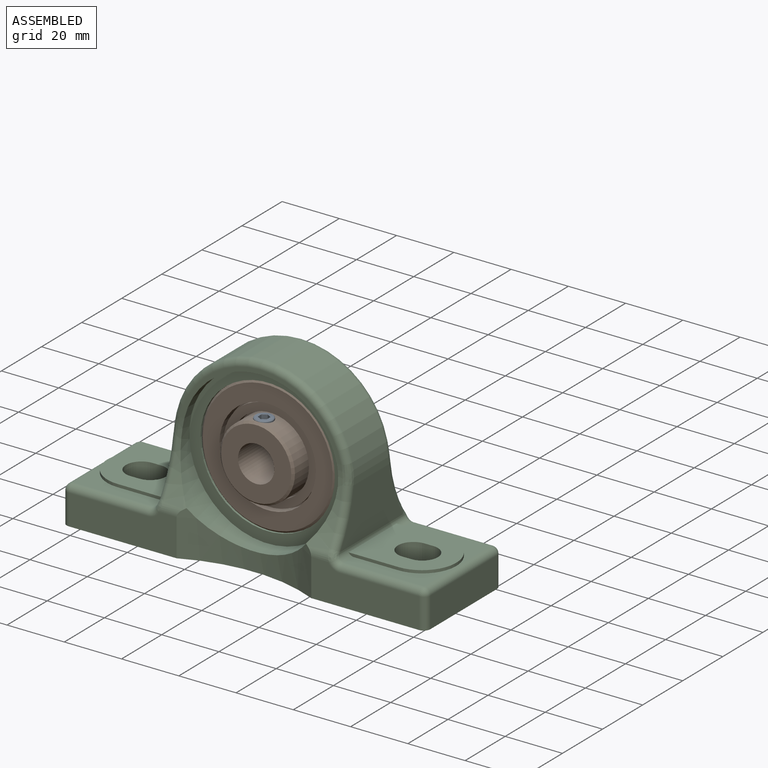
[diagram: assembled view]
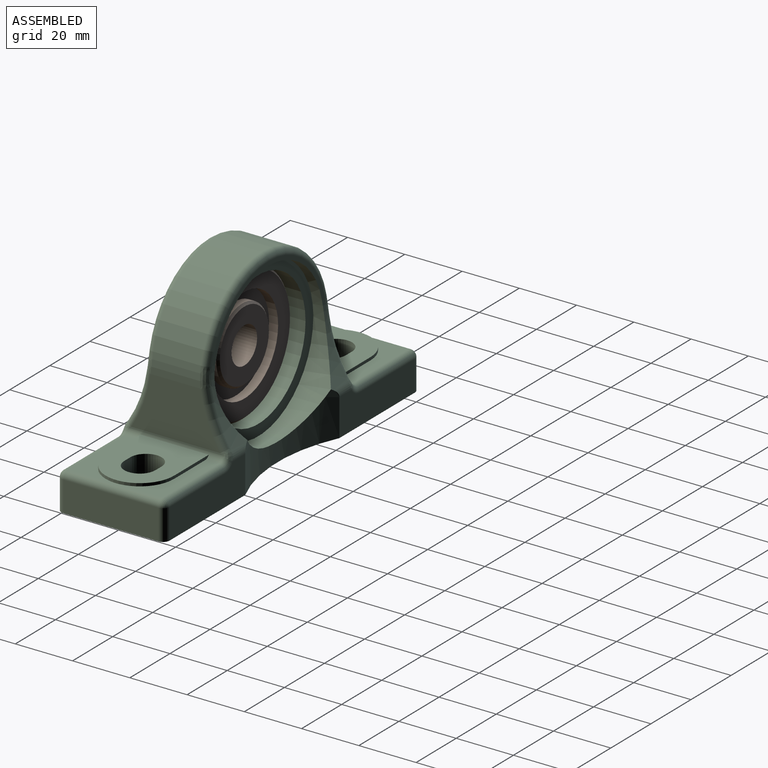
[diagram: assembled view, second angle]
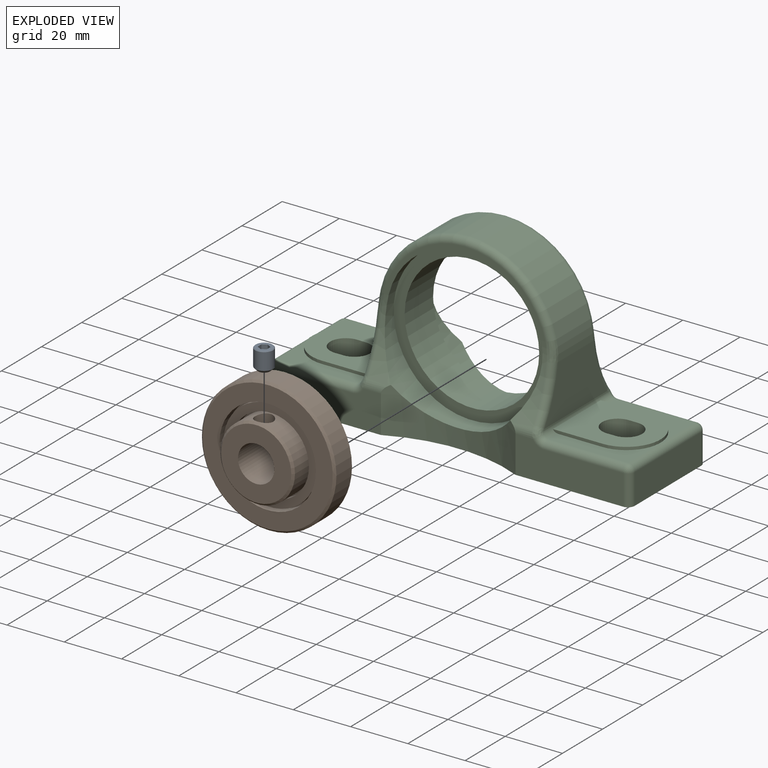
[diagram: exploded view]
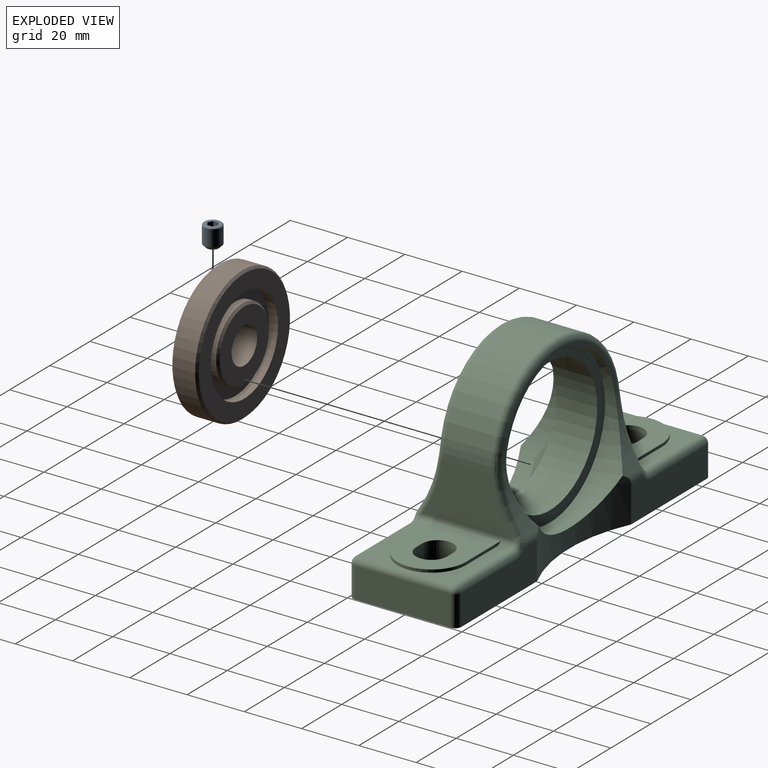
[diagram: exploded view, second angle]
ASSEMBLY  parts=3 mates=3
PART A: 12 faces, bbox 6.2x6.2x7.2 mm
  f0: cylinder r=3.12mm len=6.25mm, axis (0,0,1), area 115.9mm2, adj f10,f11
  f1: plane 4.22x4.22mm, normal (0,0,-1), area 14mm2, adj f10
  f2: plane 5.74x5.74mm, normal (0,0,1), area 17.2mm2, adj f3,f4,f5,f6,f7,f8,f11
  f3: plane 2.12x1.59mm, normal (0.5,-0.87,0), area 3.9mm2, adj f2,f4,f8,f9
  f4: plane 2.12x1.59mm, normal (-0.5,-0.87,0), area 3.9mm2, adj f2,f3,f5,f9
  f5: plane 2.12x1.83mm, normal (-1,0,0), area 3.9mm2, adj f2,f4,f6,f9
  f6: plane 2.12x1.59mm, normal (-0.5,0.87,0), area 3.9mm2, adj f2,f5,f7,f9
  f7: plane 2.12x1.59mm, normal (0.5,0.87,0), area 3.9mm2, adj f2,f6,f8,f9
  f8: plane 2.12x1.83mm, normal (1,0,0), area 3.9mm2, adj f2,f3,f7,f9
  f9: plane 3.67x3.18mm, normal (0,0,1), area 8.7mm2, adj f3,f4,f5,f6,f7,f8
  f10: cone r=3.12mm half-angle=45deg, axis (0,0,1), area 23.6mm2, adj f0,f1
  f11: cone r=3.12mm half-angle=45deg, axis (0,0,-1), area 6.8mm2, adj f0,f2
PART B: 21 faces, bbox 47x15x47 mm
  f0: cylinder r=23.49mm len=46.99mm, axis (0,-1,0), area 1143.9mm2, adj f18,f19
  f1: plane 45.47x45.47mm, normal (0,-1,0), area 734mm2, adj f2,f19
  f2: cylinder r=16.83mm len=33.66mm, axis (0,-1,0), area 335.7mm2, adj f1,f3
  f3: plane 33.66x33.66mm, normal (0,-1,0), area 52.9mm2, adj f2,f4
  f4: cylinder r=16.32mm len=32.64mm, axis (0,-1,0), area 195.3mm2, adj f3,f5
  f5: plane 32.64x32.64mm, normal (0,-1,0), area 262mm2, adj f4,f6
  f6: cylinder r=13.53mm len=27.05mm, axis (0,-1,0), area 161.9mm2, adj f5,f7
  f7: plane 27.05x27.05mm, normal (0,-1,0), area 42.4mm2, adj f6,f8
  f8: cylinder r=13.02mm len=26.04mm, axis (0,-1,0), area 634.8mm2, adj f7,f17,f20
  f9: plane 24.51x24.51mm, normal (0,-1,0), area 345.2mm2, adj f10,f17
  f10: cylinder r=6.35mm len=15.01mm, axis (0,-1,0), area 566.2mm2, adj f9,f11,f20
  f11: plane 24.51x24.51mm, normal (0,1,0), area 345.2mm2, adj f10,f16
  f12: cylinder r=13.02mm len=26.04mm, axis (0,-1,0), area 197.4mm2, adj f13,f16
  f13: plane 33.66x33.66mm, normal (0,1,0), area 357.2mm2, adj f12,f14
  f14: cylinder r=16.83mm len=33.66mm, axis (0,-1,0), area 335.7mm2, adj f13,f15
  f15: plane 45.47x45.47mm, normal (0,1,0), area 734mm2, adj f14,f18
  f16: cone r=13.02mm half-angle=45deg, axis (0,-1,0), area 85.6mm2, adj f11,f12
  f17: cone r=12.26mm half-angle=45deg, axis (0,1,0), area 85.6mm2, adj f8,f9
  f18: cone r=23.49mm half-angle=45deg, axis (0,-1,0), area 156.5mm2, adj f0,f15
  f19: cone r=22.73mm half-angle=45deg, axis (0,1,0), area 156.5mm2, adj f0,f1
  f20: cylinder r=3.17mm len=7.52mm, axis (0,0,1), area 137.4mm2, adj f8,f10
PART C: 83 faces, bbox 127x38.1x67.6 mm
  f0: cylinder r=23.49mm len=46.99mm, axis (0,1,0), area 2092.8mm2, adj f39,f46
  f1: plane 37.68x12.95mm, normal (0,1,0), area 417.1mm2, adj f7,f9,f41,f47,f55,f57
  f2: cylinder r=2.33mm len=33.19mm, axis (0,1,0), area 66.3mm2, adj f6,f15,f32,f33,f34,f72,f73,f74
  f3: cylinder r=2.33mm len=33.19mm, axis (0,1,0), area 66.3mm2, adj f5,f16,f28,f29,f30,f56,f57,f58
  f4: cylinder r=31.24mm len=62.48mm, axis (0,1,0), area 1638.4mm2, adj f5,f6,f64,f65,f66,f67,f68,f69
  f5: plane 31.05x18.5mm, normal (-1,0,0), area 421.3mm2, adj f3,f4,f62,f63
  f6: plane 31.05x18.5mm, normal (1,0,0), area 421.3mm2, adj f2,f4,f70,f71
  f7: cylinder r=55.64mm len=46.99mm, axis (0,0,1), area 489.7mm2, adj f1,f8,f9,f41,f42,f43,f44,f45
  f8: plane 37.68x12.95mm, normal (0,1,0), area 417.1mm2, adj f7,f9,f42,f48,f77,f79
  f9: plane 127x37.85mm, normal (0,0,-1), area 4218.6mm2, adj f1,f7,f8,f10,f14,f17,f18,f19
  f10: cylinder r=55.64mm len=46.99mm, axis (0,0,1), area 489.7mm2, adj f9,f12,f13,f14,f17,f36,f37,f38
  f11: plane 56.42x22.56mm, normal (0,-1,0), area 116.8mm2, adj f12,f13,f38,f66
  f12: cylinder r=44.09mm len=24.58mm, axis (1,0,0), area 84.5mm2, adj f10,f11,f36,f38,f60,f62,f64
  f13: cylinder r=44.09mm len=24.58mm, axis (1,0,0), area 84.5mm2, adj f10,f11,f37,f38,f68,f70,f72
  f14: plane 37.68x12.95mm, normal (0,-1,0), area 417.1mm2, adj f9,f10,f36,f50,f54,f56
  f15: plane 33.19x27.6mm, normal (0,0,1), area 323.3mm2, adj f2,f32,f33,f35,f78,f79,f82
  f16: plane 33.19x27.6mm, normal (0,0,1), area 323.3mm2, adj f3,f29,f30,f31,f51,f54,f55
  f17: plane 37.68x12.95mm, normal (0,-1,0), area 417.1mm2, adj f9,f10,f37,f49,f76,f78
  f18: plane 33.19x10.63mm, normal (-1,0,0), area 352.7mm2, adj f9,f47,f50,f51
  f19: plane 33.19x10.63mm, normal (1,0,0), area 352.7mm2, adj f9,f48,f49,f82
  f20: cylinder r=5.46mm len=13.97mm, axis (0,0,1), area 239.7mm2, adj f9,f21,f23,f34
  f21: plane 13.97x3.05mm, normal (0,1,0), area 42.6mm2, adj f9,f20,f22,f34
  f22: cylinder r=5.46mm len=13.97mm, axis (0,0,1), area 239.7mm2, adj f9,f21,f23,f34
  f23: plane 13.97x3.05mm, normal (0,-1,0), area 42.6mm2, adj f9,f20,f22,f34
  f24: cylinder r=5.46mm len=13.97mm, axis (0,0,1), area 239.7mm2, adj f9,f25,f27,f28
  f25: plane 13.97x3.05mm, normal (0,1,0), area 42.6mm2, adj f9,f24,f26,f28
  f26: cylinder r=5.46mm len=13.97mm, axis (0,0,1), area 239.7mm2, adj f9,f25,f27,f28
  f27: plane 13.97x3.05mm, normal (0,-1,0), area 42.6mm2, adj f9,f24,f26,f28
  f28: plane 29.31x23.88mm, normal (0,0,1), area 511.7mm2, adj f3,f24,f25,f26,f27,f29,f30,f31
  f29: plane 17.38x1.02mm, normal (0,-1,0), area 17.1mm2, adj f3,f16,f28,f31
  f30: plane 17.38x1.02mm, normal (0,1,0), area 17.1mm2, adj f3,f16,f28,f31
  f31: cylinder r=11.94mm len=23.88mm, axis (0,0,1), area 38.1mm2, adj f16,f28,f29,f30
  f32: plane 17.38x1.02mm, normal (0,1,0), area 17.1mm2, adj f2,f15,f34,f35
  f33: plane 17.38x1.02mm, normal (0,-1,0), area 17.1mm2, adj f2,f15,f34,f35
  f34: plane 29.31x23.88mm, normal (0,0,1), area 511.7mm2, adj f2,f20,f21,f22,f23,f32,f33,f35
  f35: cylinder r=11.94mm len=23.88mm, axis (0,0,1), area 38.1mm2, adj f15,f32,f33,f34
  f36: cylinder r=4.66mm len=7.82mm, axis (1,0,0), area 17.6mm2, adj f10,f12,f14,f58
  f37: cylinder r=4.66mm len=7.82mm, axis (1,0,0), area 17.6mm2, adj f10,f13,f17,f74
  f38: cylinder r=27.37mm len=54.74mm, axis (0,1,0), area 953.8mm2, adj f10,f11,f12,f13,f39
  f39: plane 54.74x54.74mm, normal (0,-1,0), area 619mm2, adj f0,f38
  f40: plane 56.42x22.56mm, normal (0,1,0), area 116.8mm2, adj f43,f44,f45,f67
  f41: cylinder r=4.66mm len=7.82mm, axis (1,0,0), area 17.6mm2, adj f1,f7,f43,f59
  f42: cylinder r=4.66mm len=7.82mm, axis (1,0,0), area 17.6mm2, adj f7,f8,f44,f75
  f43: cylinder r=44.09mm len=24.58mm, axis (1,0,0), area 84.5mm2, adj f7,f40,f41,f45,f61,f63,f65
  f44: cylinder r=44.09mm len=24.58mm, axis (1,0,0), area 85.3mm2, adj f7,f40,f42,f45,f69,f71,f73
  f45: cylinder r=27.37mm len=54.74mm, axis (0,-1,0), area 954.3mm2, adj f7,f40,f43,f44,f46
  f46: plane 54.74x54.74mm, normal (0,1,0), area 619mm2, adj f0,f45
  f47: cylinder r=2.33mm len=10.63mm, axis (0,0,-1), area 38.9mm2, adj f1,f9,f18,f53
  f48: cylinder r=2.33mm len=10.63mm, axis (0,0,1), area 38.9mm2, adj f8,f9,f19,f81
  f49: cylinder r=2.33mm len=10.63mm, axis (0,0,-1), area 38.9mm2, adj f9,f17,f19,f80
  f50: cylinder r=2.33mm len=10.63mm, axis (0,0,1), area 38.9mm2, adj f9,f14,f18,f52
  f51: cylinder r=2.33mm len=33.19mm, axis (0,1,0), area 121.4mm2, adj f16,f18,f52,f53
  f52: sphere r=2.33mm, area 8.5mm2, adj f50,f51,f54
  f53: sphere r=2.33mm, area 8.5mm2, adj f47,f51,f55
  f54: cylinder r=2.33mm len=27.6mm, axis (1,0,0), area 100.9mm2, adj f14,f16,f52,f56
  f55: cylinder r=2.33mm len=27.6mm, axis (-1,0,0), area 100.9mm2, adj f1,f16,f53,f57
  f56: torus R=4.66mm, axis (0,-1,0), area 12.2mm2, adj f3,f14,f54,f58
  f57: torus R=4.66mm, axis (0,-1,0), area 12.2mm2, adj f1,f3,f55,f59
  f58: bspline ~3.83x3.07mm, area 6.4mm2, adj f3,f36,f56,f60
  f59: bspline ~3.51x2.98mm, area 6.4mm2, adj f3,f41,f57,f61
  f60: bspline ~3.64x3.2mm, area 3.3mm2, adj f3,f12,f58,f62
  f61: bspline ~3.13x2.53mm, area 3.3mm2, adj f3,f43,f59,f63
  f62: torus R=46.42mm, axis (1,0,0), area 70.3mm2, adj f5,f12,f60,f64
  f63: torus R=46.42mm, axis (1,0,0), area 70.3mm2, adj f5,f43,f61,f65
  f64: bspline ~13.35x3.86mm, area 23.9mm2, adj f4,f12,f62,f66
  f65: bspline ~13.35x3.86mm, area 23.9mm2, adj f4,f43,f63,f67
  f66: torus R=28.91mm, axis (0,1,0), area 300mm2, adj f4,f11,f64,f68
  f67: torus R=28.91mm, axis (0,1,0), area 300mm2, adj f4,f40,f65,f69
  f68: bspline ~13.35x3.86mm, area 23.9mm2, adj f4,f13,f66,f70
  f69: bspline ~13.35x3.86mm, area 23.9mm2, adj f4,f44,f67,f71
  f70: torus R=46.42mm, axis (-1,0,0), area 70.3mm2, adj f6,f13,f68,f72
  f71: torus R=46.42mm, axis (-1,0,0), area 70.3mm2, adj f6,f44,f69,f73
  f72: bspline ~3.64x3.2mm, area 3.3mm2, adj f2,f13,f70,f74
  f73: bspline ~3.13x2.48mm, area 3.3mm2, adj f2,f44,f71,f75
  f74: bspline ~3.51x2.98mm, area 6.4mm2, adj f2,f37,f72,f76
  f75: bspline ~3.83x3.07mm, area 6.4mm2, adj f2,f42,f73,f77
  f76: torus R=4.66mm, axis (0,-1,0), area 12.2mm2, adj f2,f17,f74,f78
  f77: torus R=4.66mm, axis (0,-1,0), area 12.2mm2, adj f2,f8,f75,f79
  f78: cylinder r=2.33mm len=27.6mm, axis (1,0,0), area 100.9mm2, adj f15,f17,f76,f80
  f79: cylinder r=2.33mm len=27.6mm, axis (-1,0,0), area 100.9mm2, adj f8,f15,f77,f81
  f80: sphere r=2.33mm, area 8.5mm2, adj f49,f78,f82
  f81: sphere r=2.33mm, area 8.5mm2, adj f48,f79,f82
  f82: cylinder r=2.33mm len=33.19mm, axis (0,1,0), area 121.4mm2, adj f15,f19,f80,f81
PLACE A t=(0.07,-0.13,0.81)mm
PLACE B t=(0.07,-0.13,1.02)mm
PLACE C t=(0.07,-0.13,1.02)mm fixed
MATE cylindrical C.f0 <-> B.f0  axis (0,-1,0) through (0.07,-7.22,1.02)mm
MATE planar B.f0 <-> C.f0  axis (0,-1,0) through (0.07,-7.22,1.02)mm
MATE fastened B.f20 <-> A.f0  axis (0,0,1) through (0.07,-8.99,14.08)mm
